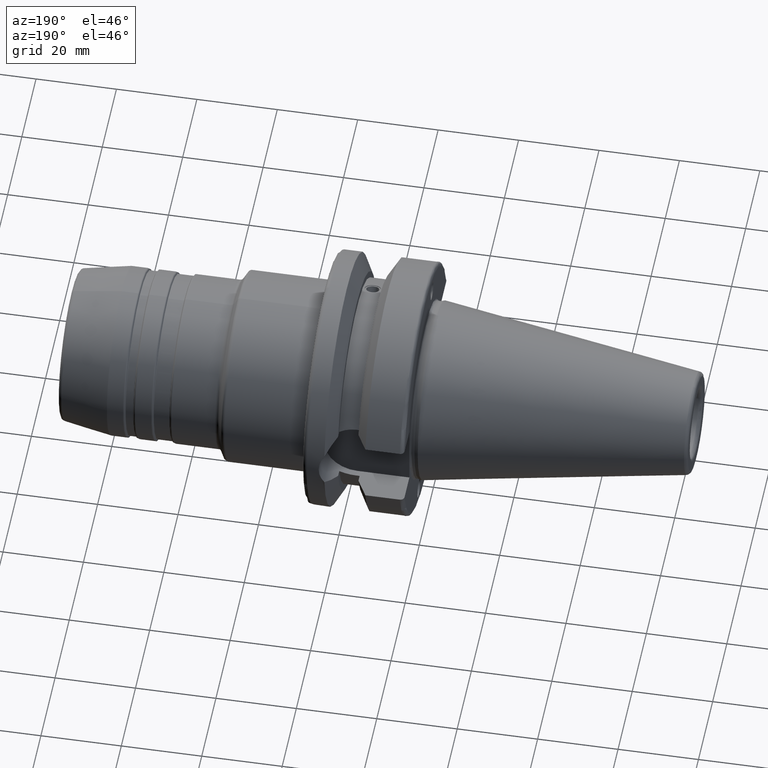
[diagram: clean part render]
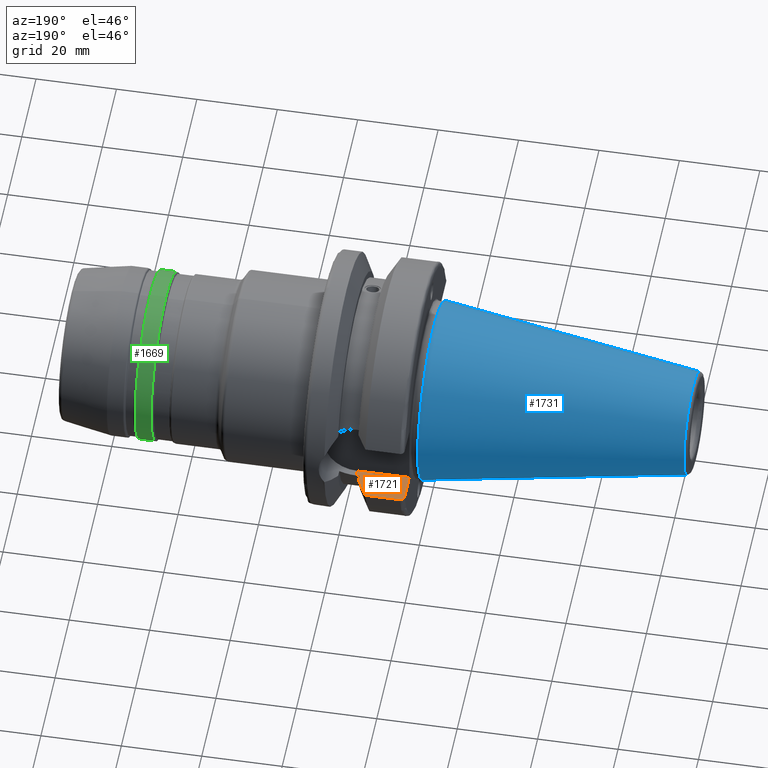
[diagram: same view with three faces highlighted in distinct colors, each labeled with its STEP entity id]
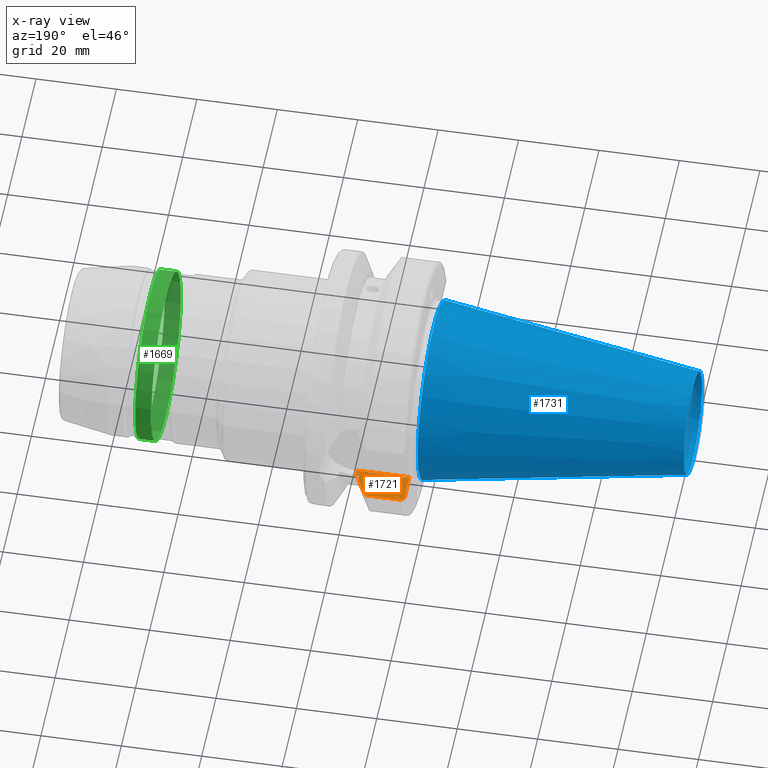
[diagram: x-ray of the same camera — body ghosted, the three highlighted faces saturated]
A machine part, auxiliary view with three faces highlighted in distinct colors.
The next image is the same camera in x-ray (body ghosted, the three faces saturated) — at least one of them is partly hidden behind the body in this view.
Their STEP definitions:

[orange] entity #1721 — the highlighted planar face has unit normal (0, 0, -1).
#17=(
BOUNDED_CURVE()
B_SPLINE_CURVE(2,(#3248,#3249,#3250),.UNSPECIFIED.,.F.,.F.)
B_SPLINE_CURVE_WITH_KNOTS((3,3),(0.,0.523582790832811),.UNSPECIFIED.)
CURVE()
GEOMETRIC_REPRESENTATION_ITEM()
RATIONAL_B_SPLINE_CURVE((1.,1.0030736009757,1.))
REPRESENTATION_ITEM('')
);
#51=PLANE('',#1967);
#113=B_SPLINE_CURVE_WITH_KNOTS('',3,(#3258,#3259,#3260,#3261,#3262,#3263,
#3264,#3265,#3266,#3267),.UNSPECIFIED.,.F.,.F.,(4,2,2,2,4),(-0.150751871388631,
-0.111946181815504,-0.0738743445372396,-0.0366169489027566,0.),
 .UNSPECIFIED.);
#202=FACE_OUTER_BOUND('',#303,.T.);
#303=EDGE_LOOP('',(#1490,#1491,#1492,#1493,#1494,#1495,#1496,#1497));
#381=LINE('',#3234,#451);
#382=LINE('',#3244,#452);
#383=LINE('',#3254,#453);
#384=LINE('',#3270,#454);
#392=LINE('',#3317,#462);
#393=LINE('',#3318,#463);
#451=VECTOR('',#2463,10.);
#452=VECTOR('',#2468,10.);
#453=VECTOR('',#2477,10.);
#454=VECTOR('',#2484,10.);
#462=VECTOR('',#2498,10.);
#463=VECTOR('',#2499,10.);
#770=VERTEX_POINT('',#3231);
#771=VERTEX_POINT('',#3233);
#772=VERTEX_POINT('',#3242);
#773=VERTEX_POINT('',#3246);
#774=VERTEX_POINT('',#3252);
#775=VERTEX_POINT('',#3256);
#776=VERTEX_POINT('',#3269);
#787=VERTEX_POINT('',#3316);
#1014=EDGE_CURVE('',#770,#771,#381,.T.);
#1017=EDGE_CURVE('',#772,#770,#382,.T.);
#1019=EDGE_CURVE('',#773,#772,#17,.T.);
#1021=EDGE_CURVE('',#774,#773,#383,.T.);
#1023=EDGE_CURVE('',#775,#774,#113,.T.);
#1024=EDGE_CURVE('',#776,#771,#384,.T.);
#1037=EDGE_CURVE('',#787,#775,#392,.T.);
#1038=EDGE_CURVE('',#776,#787,#393,.T.);
#1490=ORIENTED_EDGE('',*,*,#1014,.F.);
#1491=ORIENTED_EDGE('',*,*,#1017,.F.);
#1492=ORIENTED_EDGE('',*,*,#1019,.F.);
#1493=ORIENTED_EDGE('',*,*,#1021,.F.);
#1494=ORIENTED_EDGE('',*,*,#1023,.F.);
#1495=ORIENTED_EDGE('',*,*,#1037,.F.);
#1496=ORIENTED_EDGE('',*,*,#1038,.F.);
#1497=ORIENTED_EDGE('',*,*,#1024,.T.);
#1721=ADVANCED_FACE('',(#202),#51,.F.);
#1967=AXIS2_PLACEMENT_3D('',#3315,#2496,#2497);
#2463=DIRECTION('',(1.,0.,0.));
#2468=DIRECTION('',(0.,-1.,0.));
#2477=DIRECTION('',(1.,0.,0.));
#2484=DIRECTION('',(0.,1.,0.));
#2496=DIRECTION('center_axis',(8.57315076930623E-17,0.,-1.));
#2497=DIRECTION('ref_axis',(-1.,0.,-8.57315076930623E-17));
#2498=DIRECTION('',(0.,1.,0.));
#2499=DIRECTION('',(-1.,0.,-8.57315076930623E-17));
#3231=CARTESIAN_POINT('',(14.1,24.1960224003864,-8.05));
#3233=CARTESIAN_POINT('',(14.95,24.1960224003864,-8.05));
#3234=CARTESIAN_POINT('',(16.6,24.1960224003864,-8.05));
#3242=CARTESIAN_POINT('',(14.1,25.8705666509569,-8.05));
#3244=CARTESIAN_POINT('',(14.1,24.05,-8.05));
#3246=CARTESIAN_POINT('',(11.5690363073382,30.4540227227866,-8.05));
#3248=CARTESIAN_POINT('Ctrl Pts',(11.5690363073382,30.4540227227866,-8.05));
#3249=CARTESIAN_POINT('Ctrl Pts',(12.9374976962935,27.9899702651817,-8.05));
#3250=CARTESIAN_POINT('Ctrl Pts',(14.1,25.8705666509569,-8.05));
#3252=CARTESIAN_POINT('',(2.99999999999999,30.4540227227866,-8.05));
#3254=CARTESIAN_POINT('',(7.28451815366907,30.4540227227866,-8.05));
#3256=CARTESIAN_POINT('',(1.99999999999999,29.4184890842477,-8.05));
#3258=CARTESIAN_POINT('Ctrl Pts',(1.99999999999999,29.4184890842477,-8.05));
#3259=CARTESIAN_POINT('Ctrl Pts',(1.99999999999999,29.5478413828248,-8.05));
#3260=CARTESIAN_POINT('Ctrl Pts',(2.02950258743517,29.7002346307938,-8.05));
#3261=CARTESIAN_POINT('Ctrl Pts',(2.12587454939785,29.9376810968085,-8.05));
#3262=CARTESIAN_POINT('Ctrl Pts',(2.2089547883793,30.0653098968133,-8.05));
#3263=CARTESIAN_POINT('Ctrl Pts',(2.38465986426588,30.2446912007727,-8.05));
#3264=CARTESIAN_POINT('Ctrl Pts',(2.50758665841081,30.3289456947341,-8.05));
#3265=CARTESIAN_POINT('Ctrl Pts',(2.73442803339431,30.4247631098996,-8.05));
#3266=CARTESIAN_POINT('Ctrl Pts',(2.87794350365748,30.4540227227866,-8.05));
#3267=CARTESIAN_POINT('Ctrl Pts',(3.,30.4540227227866,-8.05));
#3269=CARTESIAN_POINT('',(14.95,22.6,-8.05));
#3270=CARTESIAN_POINT('',(14.95,22.6,-8.05));
#3315=CARTESIAN_POINT('Origin',(14.95,22.6,-8.05));
#3316=CARTESIAN_POINT('',(1.99999999999999,22.6,-8.05));
#3317=CARTESIAN_POINT('',(1.99999999999999,26.55,-8.05));
#3318=CARTESIAN_POINT('',(14.95,22.6,-8.05));

[blue] entity #1731 — the highlighted conical surface has half-angle 8.297 deg.
#131=CONICAL_SURFACE('',#1996,17.5186442890469,0.144812498238939);
#212=FACE_OUTER_BOUND('',#315,.T.);
#315=EDGE_LOOP('',(#1546,#1547,#1548,#1549,#1550,#1551,#1552));
#398=LINE('',#3372,#468);
#468=VECTOR('',#2566,17.5186442890469);
#604=CIRCLE('',#1992,12.8122885780937);
#605=CIRCLE('',#1993,12.8122885780937);
#606=CIRCLE('',#1994,12.8122885780937);
#608=CIRCLE('',#1997,22.225);
#609=CIRCLE('',#1998,22.225);
#801=VERTEX_POINT('',#3360);
#802=VERTEX_POINT('',#3361);
#803=VERTEX_POINT('',#3363);
#804=VERTEX_POINT('',#3368);
#805=VERTEX_POINT('',#3369);
#1058=EDGE_CURVE('',#801,#802,#604,.T.);
#1059=EDGE_CURVE('',#803,#801,#605,.T.);
#1060=EDGE_CURVE('',#802,#803,#606,.T.);
#1062=EDGE_CURVE('',#804,#805,#608,.T.);
#1063=EDGE_CURVE('',#805,#804,#609,.T.);
#1064=EDGE_CURVE('',#805,#803,#398,.T.);
#1546=ORIENTED_EDGE('',*,*,#1062,.F.);
#1547=ORIENTED_EDGE('',*,*,#1063,.F.);
#1548=ORIENTED_EDGE('',*,*,#1064,.T.);
#1549=ORIENTED_EDGE('',*,*,#1059,.T.);
#1550=ORIENTED_EDGE('',*,*,#1058,.T.);
#1551=ORIENTED_EDGE('',*,*,#1060,.T.);
#1552=ORIENTED_EDGE('',*,*,#1064,.F.);
#1731=ADVANCED_FACE('',(#212),#131,.T.);
#1992=AXIS2_PLACEMENT_3D('',#3362,#2552,#2553);
#1993=AXIS2_PLACEMENT_3D('',#3364,#2554,#2555);
#1994=AXIS2_PLACEMENT_3D('',#3365,#2556,#2557);
#1996=AXIS2_PLACEMENT_3D('',#3367,#2560,#2561);
#1997=AXIS2_PLACEMENT_3D('',#3370,#2562,#2563);
#1998=AXIS2_PLACEMENT_3D('',#3371,#2564,#2565);
#2552=DIRECTION('center_axis',(1.,0.,0.));
#2553=DIRECTION('ref_axis',(0.,0.,-1.));
#2554=DIRECTION('center_axis',(1.,0.,0.));
#2555=DIRECTION('ref_axis',(0.,0.,-1.));
#2556=DIRECTION('center_axis',(1.,0.,0.));
#2557=DIRECTION('ref_axis',(0.,0.,-1.));
#2560=DIRECTION('center_axis',(1.,0.,0.));
#2561=DIRECTION('ref_axis',(0.,1.,0.));
#2562=DIRECTION('center_axis',(1.,0.,0.));
#2563=DIRECTION('ref_axis',(0.,0.,-1.));
#2564=DIRECTION('center_axis',(1.,0.,0.));
#2565=DIRECTION('ref_axis',(0.,0.,-1.));
#2566=DIRECTION('',(-0.989532981063281,0.144306893071729,1.76724974695192E-17));
#3360=CARTESIAN_POINT('',(-64.5443068930717,12.8122885780937,0.));
#3361=CARTESIAN_POINT('',(-64.5443068930717,-1.56905281969147E-15,12.8122885780937));
#3362=CARTESIAN_POINT('Origin',(-64.5443068930717,0.,0.));
#3363=CARTESIAN_POINT('',(-64.5443068930717,-12.8122885780937,-1.56905281969147E-15));
#3364=CARTESIAN_POINT('Origin',(-64.5443068930717,0.,0.));
#3365=CARTESIAN_POINT('Origin',(-64.5443068930717,0.,0.));
#3367=CARTESIAN_POINT('Origin',(-32.2721534465359,0.,0.));
#3368=CARTESIAN_POINT('',(1.11022302462516E-15,22.225,0.));
#3369=CARTESIAN_POINT('',(4.44089209850063E-15,-22.225,-2.72177751110499E-15));
#3370=CARTESIAN_POINT('Origin',(0.,0.,0.));
#3371=CARTESIAN_POINT('Origin',(0.,0.,0.));
#3372=CARTESIAN_POINT('',(-32.2721534465359,-17.5186442890469,-2.14541516539823E-15));

[green] entity #1669 — the highlighted cylindrical surface (bore or boss wall) has radius 21 mm, axis along (1, 0, 0).
#150=FACE_OUTER_BOUND('',#242,.T.);
#242=EDGE_LOOP('',(#1181,#1182,#1183,#1184,#1185,#1186));
#341=LINE('',#2806,#411);
#411=VECTOR('',#2157,21.);
#512=CIRCLE('',#1820,21.);
#513=CIRCLE('',#1821,21.);
#514=CIRCLE('',#1823,21.);
#515=CIRCLE('',#1824,21.);
#664=VERTEX_POINT('',#2799);
#665=VERTEX_POINT('',#2801);
#666=VERTEX_POINT('',#2805);
#667=VERTEX_POINT('',#2807);
#868=EDGE_CURVE('',#664,#665,#512,.T.);
#869=EDGE_CURVE('',#665,#664,#513,.T.);
#870=EDGE_CURVE('',#664,#666,#341,.T.);
#871=EDGE_CURVE('',#667,#666,#514,.T.);
#872=EDGE_CURVE('',#666,#667,#515,.T.);
#1181=ORIENTED_EDGE('',*,*,#869,.F.);
#1182=ORIENTED_EDGE('',*,*,#868,.F.);
#1183=ORIENTED_EDGE('',*,*,#870,.T.);
#1184=ORIENTED_EDGE('',*,*,#871,.F.);
#1185=ORIENTED_EDGE('',*,*,#872,.F.);
#1186=ORIENTED_EDGE('',*,*,#870,.F.);
#1625=CYLINDRICAL_SURFACE('',#1822,21.);
#1669=ADVANCED_FACE('',(#150),#1625,.T.);
#1820=AXIS2_PLACEMENT_3D('',#2802,#2151,#2152);
#1821=AXIS2_PLACEMENT_3D('',#2803,#2153,#2154);
#1822=AXIS2_PLACEMENT_3D('',#2804,#2155,#2156);
#1823=AXIS2_PLACEMENT_3D('',#2808,#2158,#2159);
#1824=AXIS2_PLACEMENT_3D('',#2809,#2160,#2161);
#2151=DIRECTION('center_axis',(1.,0.,0.));
#2152=DIRECTION('ref_axis',(0.,1.22464679914735E-16,1.));
#2153=DIRECTION('center_axis',(1.,0.,0.));
#2154=DIRECTION('ref_axis',(0.,1.22464679914735E-16,1.));
#2155=DIRECTION('center_axis',(1.,0.,0.));
#2156=DIRECTION('ref_axis',(0.,0.,-1.));
#2157=DIRECTION('',(-1.,0.,0.));
#2158=DIRECTION('center_axis',(-1.,0.,0.));
#2159=DIRECTION('ref_axis',(0.,1.22464679914735E-16,1.));
#2160=DIRECTION('center_axis',(-1.,0.,0.));
#2161=DIRECTION('ref_axis',(0.,1.22464679914735E-16,1.));
#2799=CARTESIAN_POINT('',(70.4803847577293,-2.57175827820944E-15,21.));
#2801=CARTESIAN_POINT('',(70.4803847577293,0.,-21.));
#2802=CARTESIAN_POINT('Origin',(70.4803847577293,0.,0.));
#2803=CARTESIAN_POINT('Origin',(70.4803847577293,0.,0.));
#2804=CARTESIAN_POINT('Origin',(68.5,0.,0.));
#2805=CARTESIAN_POINT('',(66.5196152422706,-2.57175827820944E-15,21.));
#2806=CARTESIAN_POINT('',(68.5,-2.57175827820944E-15,21.));
#2807=CARTESIAN_POINT('',(66.5196152422706,-5.14351655641888E-15,-21.));
#2808=CARTESIAN_POINT('Origin',(66.5196152422706,0.,0.));
#2809=CARTESIAN_POINT('Origin',(66.5196152422706,0.,0.));